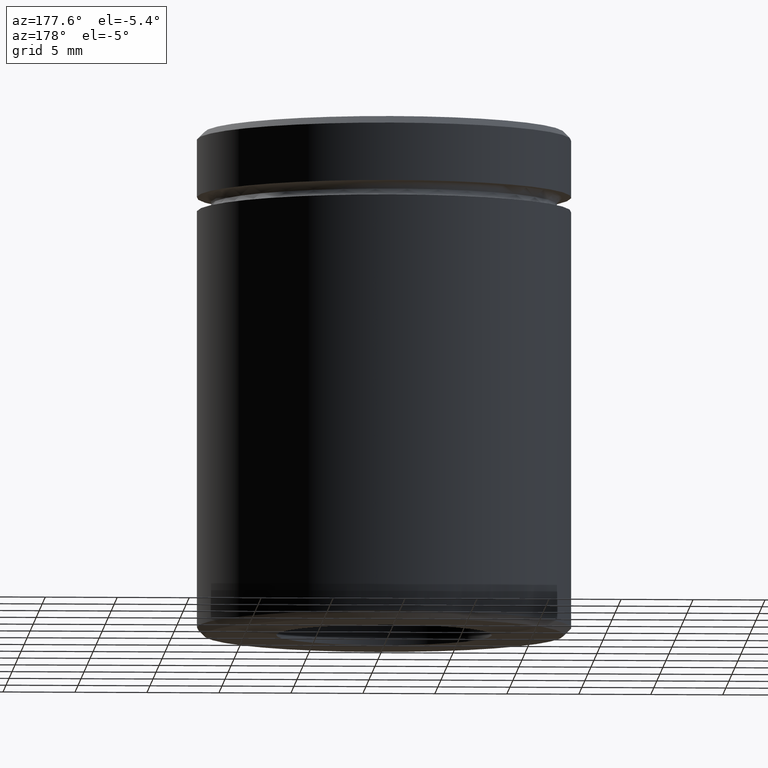
[diagram: clean part render]
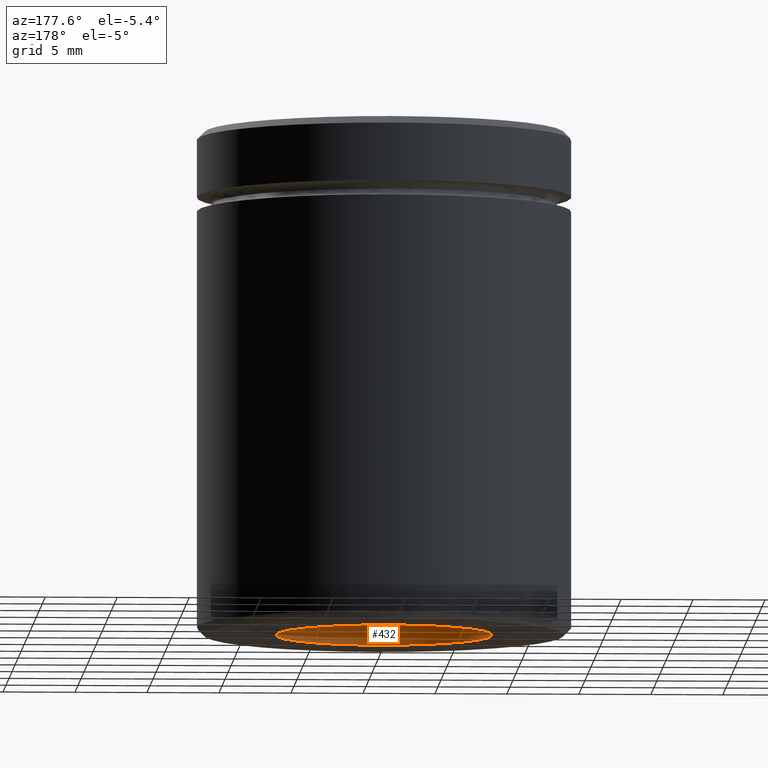
[diagram: same view with one face highlighted and labeled with its STEP entity id]
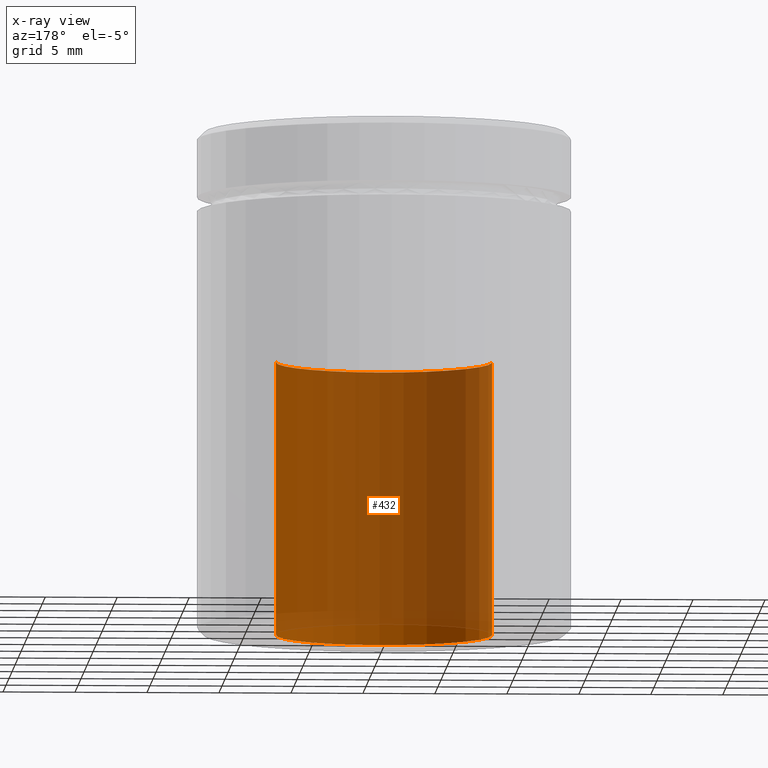
[diagram: x-ray of the same camera — body ghosted, the highlighted face saturated]
A machine part, auxiliary view. The second image highlights one B-rep face of the part: STEP entity #432.
The next image is the same camera in x-ray: the body ghosted, the highlighted face saturated — about 94% of this face is hidden behind the body in this view.
In plain terms, the highlighted cylindrical surface (partial cylindrical patch) has radius 7.5 mm, axis along (-0, -0, -1).
Its self-contained STEP definition (entity closure, byte-faithful):
#2 = VERTEX_POINT ( 'NONE', #400 ) ;
#17 = CIRCLE ( 'NONE', #110, 7.500000000000000000 ) ;
#29 = DIRECTION ( 'NONE',  ( -0.000000000000000000, -0.000000000000000000, -1.000000000000000000 ) ) ;
#35 = AXIS2_PLACEMENT_3D ( 'NONE', #118, #345, #509 ) ;
#40 = ORIENTED_EDGE ( 'NONE', *, *, #97, .T. ) ;
#97 = EDGE_CURVE ( 'NONE', #2, #361, #514, .T. ) ;
#110 = AXIS2_PLACEMENT_3D ( 'NONE', #195, #166, #122 ) ;
#116 = DIRECTION ( 'NONE',  ( -1.000000000000000000, 0.000000000000000000, 0.000000000000000000 ) ) ;
#118 = CARTESIAN_POINT ( 'NONE',  ( 0.000000000000000000, 0.000000000000000000, -35.00000000000000000 ) ) ;
#119 = CYLINDRICAL_SURFACE ( 'NONE', #123, 7.500000000000000000 ) ;
#122 = DIRECTION ( 'NONE',  ( -1.000000000000000000, 0.000000000000000000, 0.000000000000000000 ) ) ;
#123 = AXIS2_PLACEMENT_3D ( 'NONE', #161, #519, #116 ) ;
#142 = EDGE_LOOP ( 'NONE', ( #277, #173, #40, #399 ) ) ;
#161 = CARTESIAN_POINT ( 'NONE',  ( 0.000000000000000000, 0.000000000000000000, -16.00000000000000355 ) ) ;
#166 = DIRECTION ( 'NONE',  ( 0.000000000000000000, 0.000000000000000000, -1.000000000000000000 ) ) ;
#173 = ORIENTED_EDGE ( 'NONE', *, *, #565, .T. ) ;
#193 = CARTESIAN_POINT ( 'NONE',  ( 7.500000000000000000, 9.184850993605147944E-16, -16.00000000000000355 ) ) ;
#195 = CARTESIAN_POINT ( 'NONE',  ( 0.000000000000000000, 0.000000000000000000, -16.00000000000000355 ) ) ;
#258 = LINE ( 'NONE', #426, #285 ) ;
#277 = ORIENTED_EDGE ( 'NONE', *, *, #475, .F. ) ;
#285 = VECTOR ( 'NONE', #29, 1000.000000000000000 ) ;
#343 = LINE ( 'NONE', #391, #381 ) ;
#345 = DIRECTION ( 'NONE',  ( 0.000000000000000000, 0.000000000000000000, -1.000000000000000000 ) ) ;
#361 = VERTEX_POINT ( 'NONE', #510 ) ;
#365 = VERTEX_POINT ( 'NONE', #193 ) ;
#381 = VECTOR ( 'NONE', #469, 1000.000000000000000 ) ;
#391 = CARTESIAN_POINT ( 'NONE',  ( -7.500000000000000000, 0.000000000000000000, -16.00000000000000355 ) ) ;
#399 = ORIENTED_EDGE ( 'NONE', *, *, #444, .F. ) ;
#400 = CARTESIAN_POINT ( 'NONE',  ( 7.500000000000000000, 9.184850993605147944E-16, -35.00000000000000000 ) ) ;
#426 = CARTESIAN_POINT ( 'NONE',  ( 7.500000000000000000, 9.184850993605147944E-16, -16.00000000000000355 ) ) ;
#431 = CARTESIAN_POINT ( 'NONE',  ( -7.500000000000000000, 0.000000000000000000, -16.00000000000000355 ) ) ;
#432 = ADVANCED_FACE ( 'NONE', ( #507 ), #119, .F. ) ;
#444 = EDGE_CURVE ( 'NONE', #547, #361, #343, .T. ) ;
#469 = DIRECTION ( 'NONE',  ( -0.000000000000000000, -0.000000000000000000, -1.000000000000000000 ) ) ;
#475 = EDGE_CURVE ( 'NONE', #365, #547, #17, .T. ) ;
#507 = FACE_OUTER_BOUND ( 'NONE', #142, .T. ) ;
#509 = DIRECTION ( 'NONE',  ( -1.000000000000000000, 0.000000000000000000, 0.000000000000000000 ) ) ;
#510 = CARTESIAN_POINT ( 'NONE',  ( -7.500000000000000000, 0.000000000000000000, -35.00000000000000000 ) ) ;
#514 = CIRCLE ( 'NONE', #35, 7.500000000000000000 ) ;
#519 = DIRECTION ( 'NONE',  ( -0.000000000000000000, -0.000000000000000000, -1.000000000000000000 ) ) ;
#547 = VERTEX_POINT ( 'NONE', #431 ) ;
#565 = EDGE_CURVE ( 'NONE', #365, #2, #258, .T. ) ;